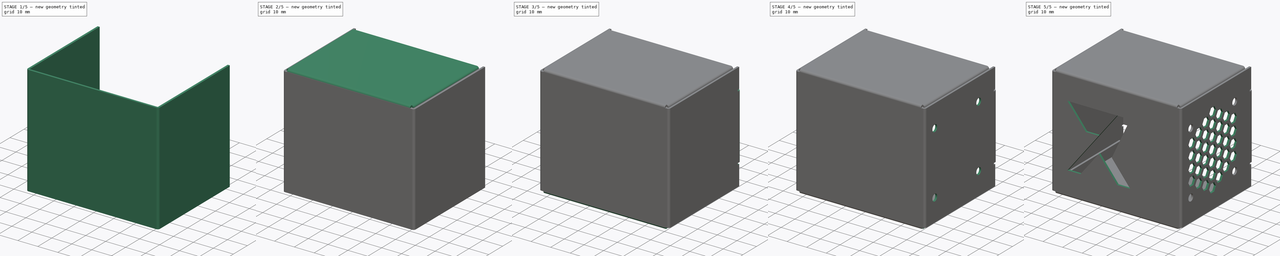
[diagram: build sequence overview — one tinted view per stage of 5, left to right]
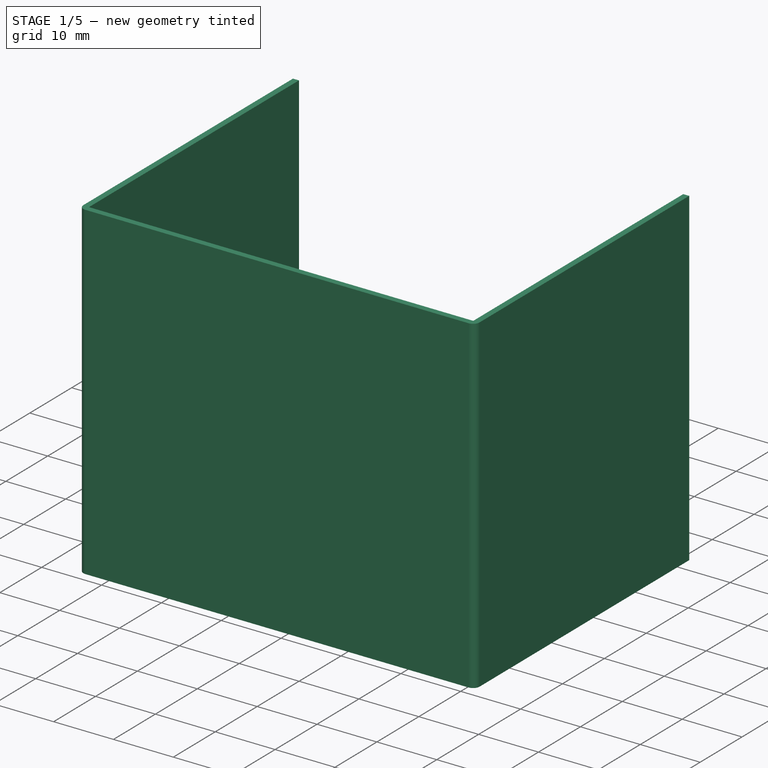
[diagram: stage 1 of 5 — iso view after this stage's code; geometry added in this stage tinted green]
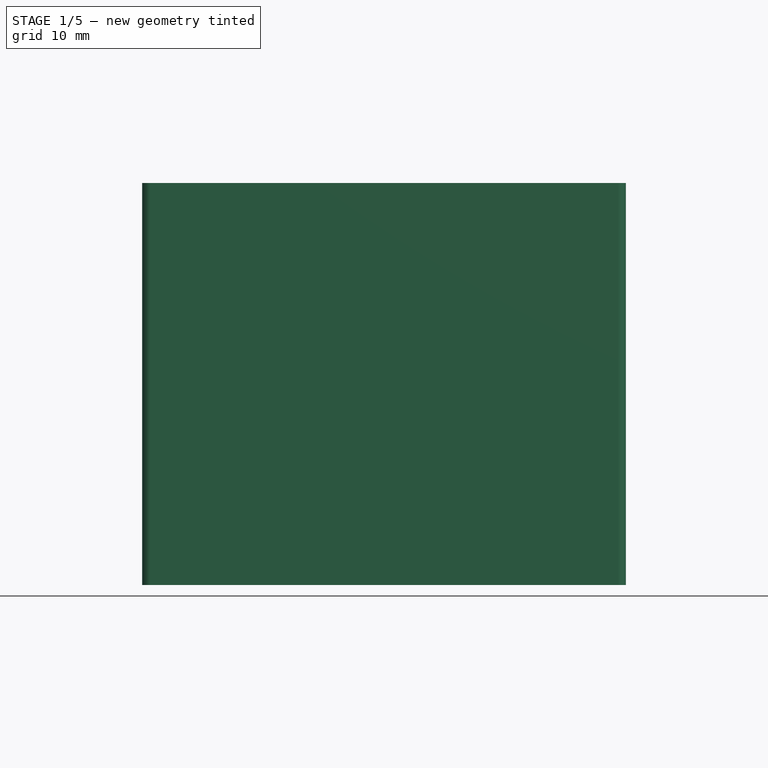
[diagram: stage 1 of 5 — front view after this stage's code; geometry added in this stage tinted green]
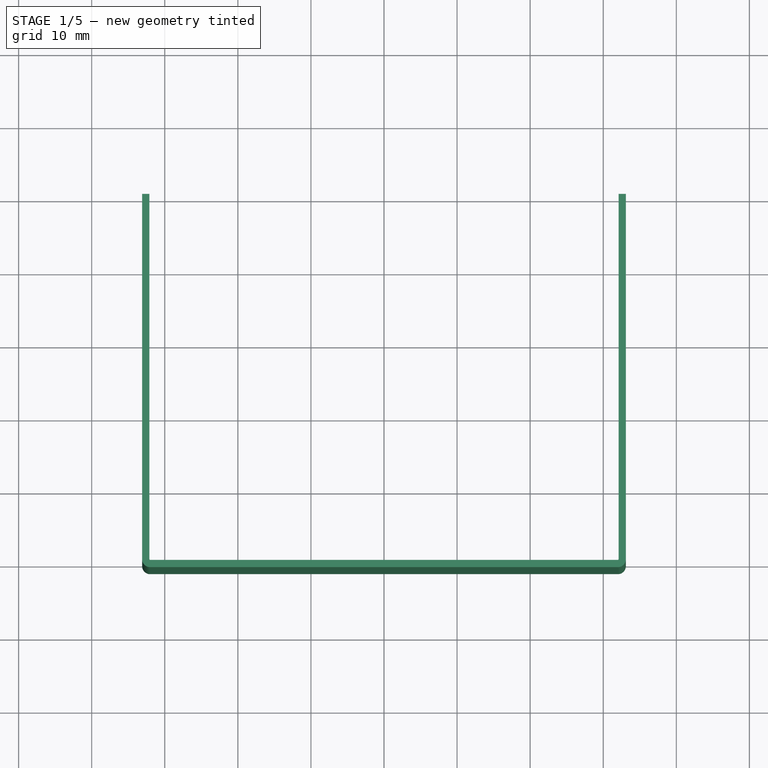
[diagram: stage 1 of 5 — top view after this stage's code; geometry added in this stage tinted green]
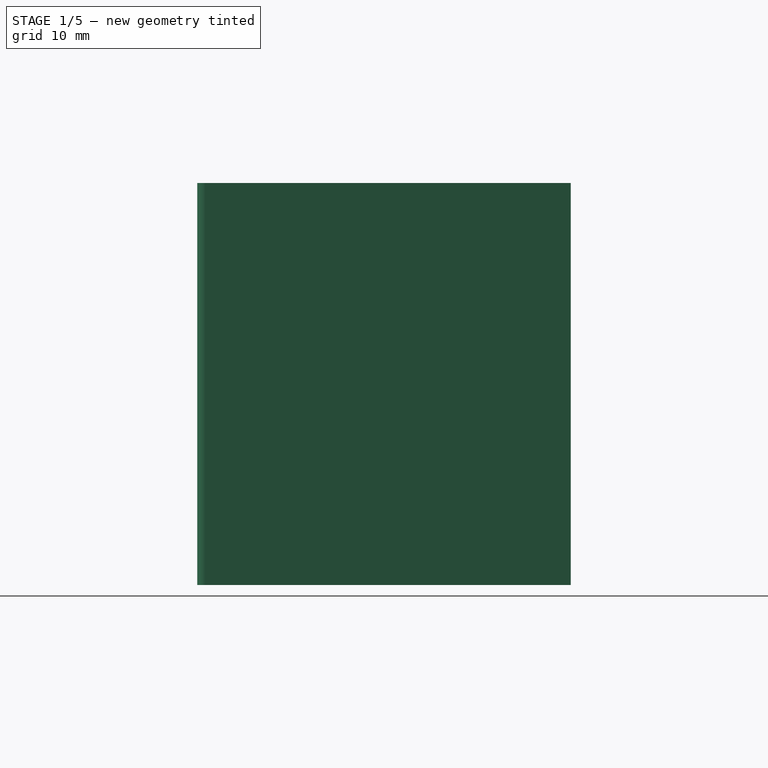
[diagram: stage 1 of 5 — right view after this stage's code; geometry added in this stage tinted green]
FCSTD DOCUMENT  (FreeCAD 0.19R24276 (Git))
Label: PX2_Hotend_housing_v2
License: All rights reserved
LicenseURL: http://en.wikipedia.org/wiki/All_rights_reserved
objects: PartDesign::FeaturePython×10, Sketcher::SketchObject×4, PartDesign::Pocket×3, PartDesign::Pad×1, PartDesign::CoordinateSystem×1, PartDesign::Line×1, PartDesign::PolarPattern×1, PartDesign::Body×1
note: 26 computed .brp shape members not serialized (recipe doc carries the construction recipe); baked Part::Feature solids carry a one-line shape summary decoded from their .brp

FEATURE [Sketcher::SketchObject] Sketch
  FullyConstrained = true
  MapMode = 5
  Placement = pos=(0,0,0) rot=(1,0,0;1.5708rad)
  Support = -> [XZ_Plane]
  sketch-geometry (4):
    g0: LineSegment StartX=-32 StartY=27.5 StartZ=0 EndX=32 EndY=27.5 EndZ=0
    g1: LineSegment StartX=32 StartY=27.5 StartZ=0 EndX=32 EndY=-27.5 EndZ=0
    g2: LineSegment StartX=32 StartY=-27.5 StartZ=0 EndX=-32 EndY=-27.5 EndZ=0
    g3: LineSegment StartX=-32 StartY=-27.5 StartZ=0 EndX=-32 EndY=27.5 EndZ=0
  constraints (11):
    c: Coincident(g0,g1)
    c: Coincident(g1,g2)
    c: Coincident(g2,g3)
    c: Coincident(g3,g0)
    c: Horizontal(g0)
    c: Horizontal(g2)
    c: Vertical(g1)
    c: Vertical(g3)
    c: DistanceX(g0,g0) = 64
    c: DistanceY(g3,g3) = 55
    c: Symmetric(g0,g1,g-1)
FEATURE [PartDesign::Pad] Pad
  Direction = (1,1,1)
  Length = 1
  Length2 = 100
  Placement = pos=(0,0,0) rot=(1,0,0;1.5708rad)
  Profile = -> Sketch
  Type = 0
FEATURE [PartDesign::FeaturePython] Bend  label="right"  # WARN: FeaturePython — macro-defined, semantics opaque (R4)
  AutoMiter = true
  BaseFeature = -> Pad
  BendType = 0
  LengthList = [50]
  ReliefFactor = 0.7
  UseReliefFactor = false
  angle = 90
  baseObject = -> Pad [Edge7]
  bendAList = [90]
  extend1 = 0
  extend2 = 0
  gap1 = 0
  gap2 = 0
  invert = false
  kfactor = 0.5
  length = 50
  maxExtendDist = 5
  minGap = 0.1
  minReliefGap = 1
  miterangle1 = 0
  miterangle2 = 0
  offset = 0
  radius = 0.1
  reliefType = 0
  reliefd = 1
  reliefw = 0.8
  sketchflip = false
  sketchinvert = false
  unfold = false
FEATURE [PartDesign::FeaturePython] Bend001  label="left"  # WARN: FeaturePython — macro-defined, semantics opaque (R4)
  AutoMiter = true
  BaseFeature = -> Bend
  BendType = 0
  LengthList = [50]
  ReliefFactor = 0.7
  UseReliefFactor = false
  angle = 90
  baseObject = -> Bend [Edge25]
  bendAList = [90]
  extend1 = 0
  extend2 = 0
  gap1 = 0
  gap2 = 0
  invert = false
  kfactor = 0.5
  length = 50
  maxExtendDist = 5
  minGap = 0.1
  minReliefGap = 1
  miterangle1 = 0
  miterangle2 = 0
  offset = 0
  radius = 0.1
  reliefType = 0
  reliefd = 1
  reliefw = 0.8
  sketchflip = false
  sketchinvert = false
  unfold = false
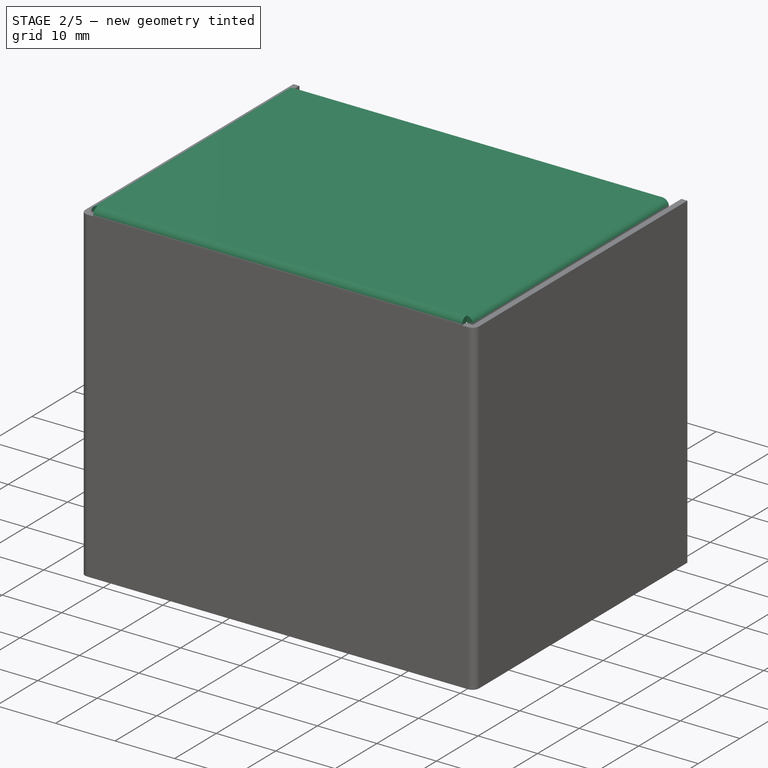
[diagram: stage 2 of 5 — iso view after this stage's code; geometry added in this stage tinted green]
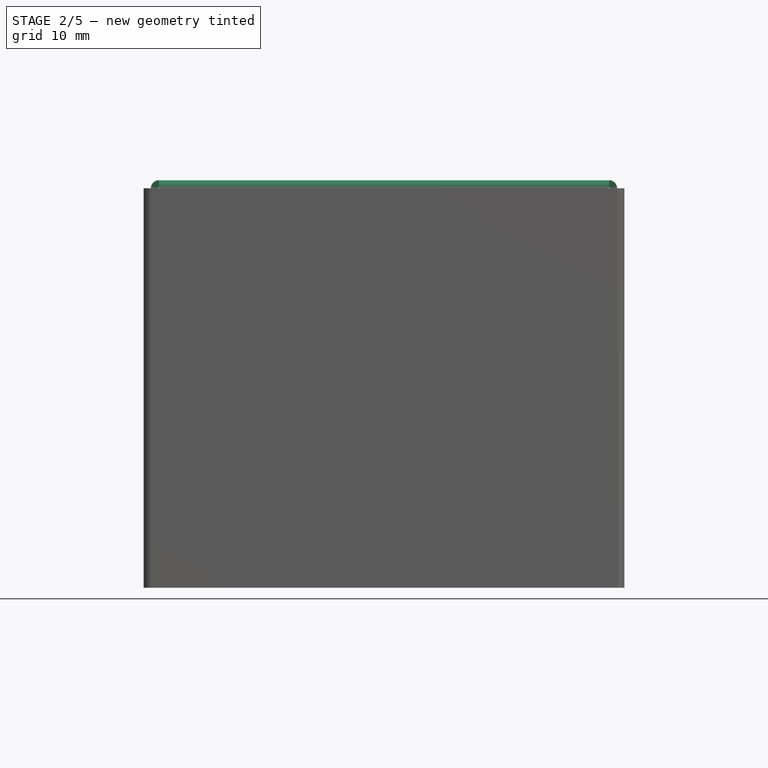
[diagram: stage 2 of 5 — front view after this stage's code; geometry added in this stage tinted green]
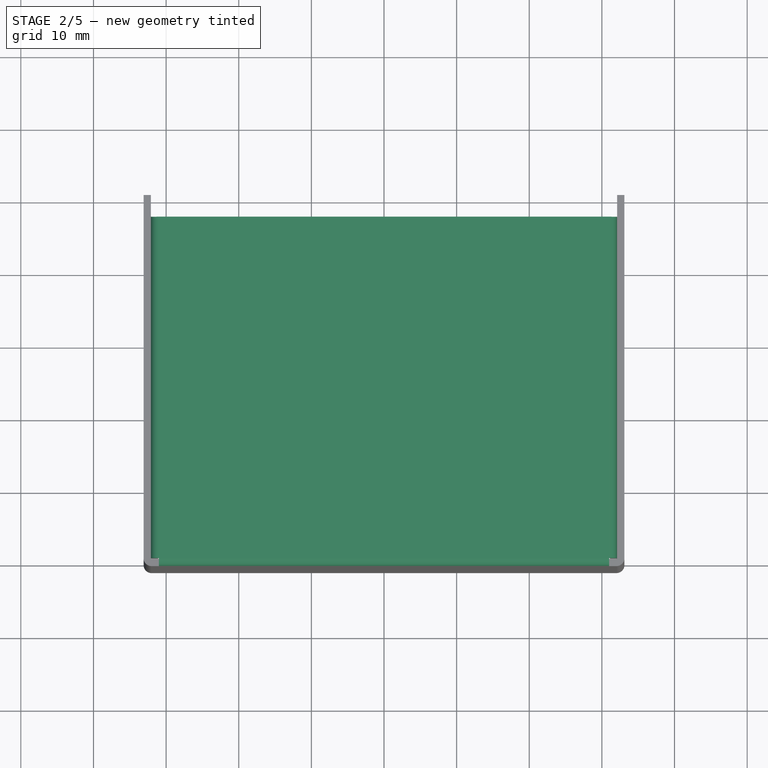
[diagram: stage 2 of 5 — top view after this stage's code; geometry added in this stage tinted green]
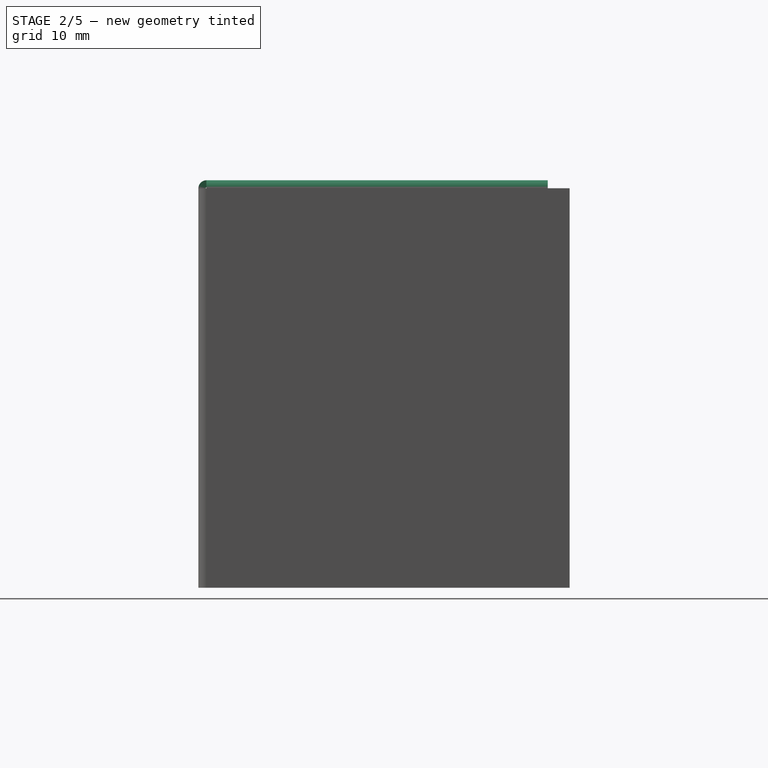
[diagram: stage 2 of 5 — right view after this stage's code; geometry added in this stage tinted green]
FEATURE [PartDesign::FeaturePython] Bend002  label="top"  # WARN: FeaturePython — macro-defined, semantics opaque (R4)
  AutoMiter = true
  BaseFeature = -> Bend001
  BendType = 0
  LengthList = [47]
  ReliefFactor = 0.7
  UseReliefFactor = false
  angle = 90
  baseObject = -> Bend001 [Edge24]
  bendAList = [90]
  extend1 = 0
  extend2 = 0
  gap1 = 1
  gap2 = 1
  invert = false
  kfactor = 0.5
  length = 47
  maxExtendDist = 5
  minGap = 0.1
  minReliefGap = 1
  miterangle1 = 0
  miterangle2 = 0
  offset = 0
  radius = 0.1
  reliefType = 0
  reliefd = 1
  reliefw = 0.8
  sketchflip = false
  sketchinvert = false
  unfold = false
FEATURE [PartDesign::FeaturePython] Bend003  label="top_flap_l"  # WARN: FeaturePython — macro-defined, semantics opaque (R4)
  AutoMiter = true
  BaseFeature = -> Bend002
  BendType = 0
  LengthList = [5]
  ReliefFactor = 0.7
  UseReliefFactor = false
  angle = 90
  baseObject = -> Bend002 [Edge3]
  bendAList = [90]
  extend1 = 0
  extend2 = 0
  gap1 = 0
  gap2 = 0
  invert = false
  kfactor = 0.5
  length = 5
  maxExtendDist = 5
  minGap = 0.1
  minReliefGap = 1
  miterangle1 = 0
  miterangle2 = 0
  offset = 0
  radius = 0.1
  reliefType = 0
  reliefd = 1
  reliefw = 0.8
  sketchflip = false
  sketchinvert = false
  unfold = false
FEATURE [PartDesign::FeaturePython] Bend004  label="top_flap_r"  # WARN: FeaturePython — macro-defined, semantics opaque (R4)
  AutoMiter = true
  BaseFeature = -> Bend003
  BendType = 0
  LengthList = [5]
  ReliefFactor = 0.7
  UseReliefFactor = false
  angle = 90
  baseObject = -> Bend003 [Edge44]
  bendAList = [90]
  extend1 = 0
  extend2 = 0
  gap1 = 0
  gap2 = 0
  invert = false
  kfactor = 0.5
  length = 5
  maxExtendDist = 5
  minGap = 0.1
  minReliefGap = 1
  miterangle1 = 0
  miterangle2 = 0
  offset = 0
  radius = 0.1
  reliefType = 0
  reliefd = 1
  reliefw = 0.8
  sketchflip = false
  sketchinvert = false
  unfold = false
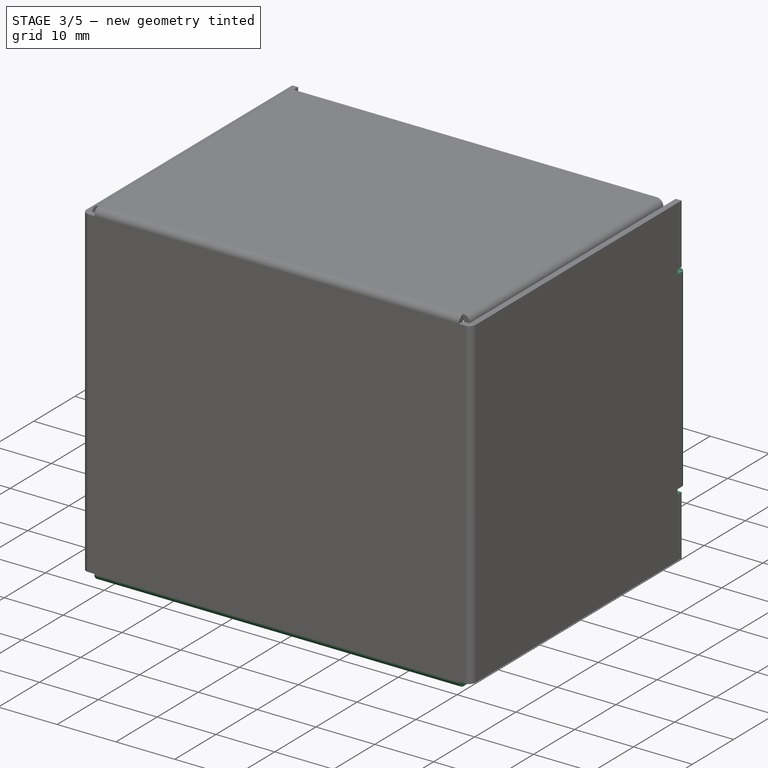
[diagram: stage 3 of 5 — iso view after this stage's code; geometry added in this stage tinted green]
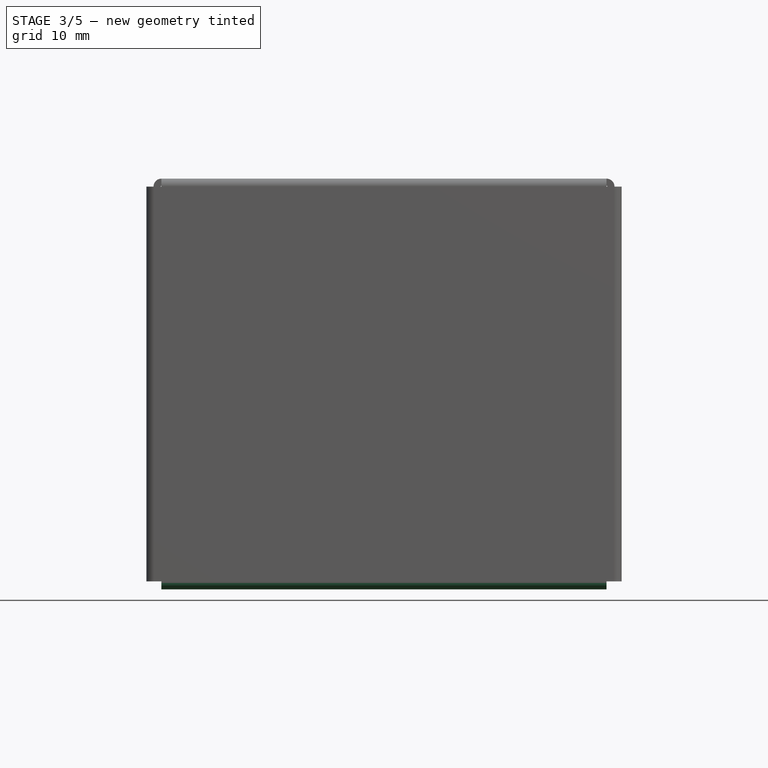
[diagram: stage 3 of 5 — front view after this stage's code; geometry added in this stage tinted green]
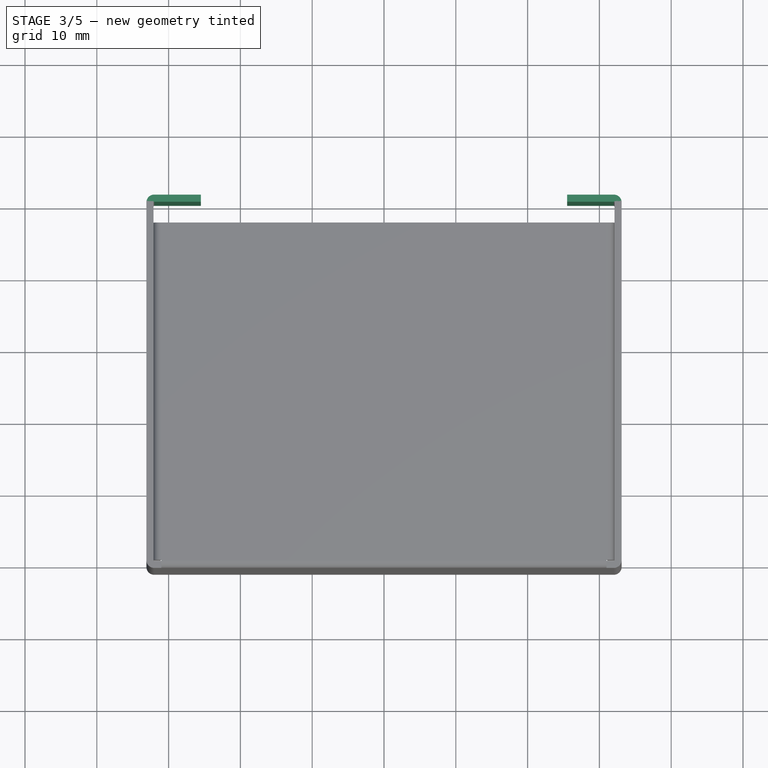
[diagram: stage 3 of 5 — top view after this stage's code; geometry added in this stage tinted green]
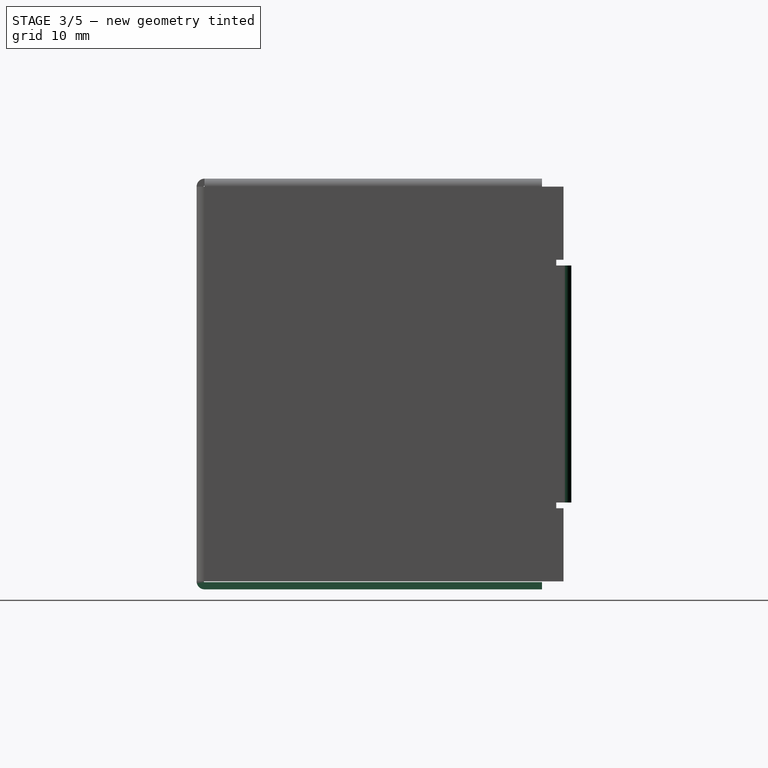
[diagram: stage 3 of 5 — right view after this stage's code; geometry added in this stage tinted green]
FEATURE [PartDesign::FeaturePython] Bend005  label="back_flap_r"  # WARN: FeaturePython — macro-defined, semantics opaque (R4)
  AutoMiter = true
  BaseFeature = -> Bend004
  BendType = 0
  LengthList = [6.5]
  ReliefFactor = 0.7
  UseReliefFactor = false
  angle = 90
  baseObject = -> Bend004 [Edge34]
  bendAList = [90]
  extend1 = 0
  extend2 = 0
  gap1 = 11
  gap2 = 11
  invert = false
  kfactor = 0.5
  length = 6.5
  maxExtendDist = 5
  minGap = 0.1
  minReliefGap = 1
  miterangle1 = 0
  miterangle2 = 0
  offset = 0
  radius = 0.1
  reliefType = 0
  reliefd = 1
  reliefw = 0.8
  sketchflip = false
  sketchinvert = false
  unfold = false
FEATURE [PartDesign::FeaturePython] Bend006  label="back_flap_l"  # WARN: FeaturePython — macro-defined, semantics opaque (R4)
  AutoMiter = true
  BaseFeature = -> Bend005
  BendType = 0
  LengthList = [6.5]
  ReliefFactor = 0.7
  UseReliefFactor = false
  angle = 90
  baseObject = -> Bend005 [Edge119]
  bendAList = [90]
  extend1 = 0
  extend2 = 0
  gap1 = 11
  gap2 = 11
  invert = false
  kfactor = 0.5
  length = 6.5
  maxExtendDist = 5
  minGap = 0.1
  minReliefGap = 1
  miterangle1 = 0
  miterangle2 = 0
  offset = 0
  radius = 0.1
  reliefType = 0
  reliefd = 1
  reliefw = 0.8
  sketchflip = false
  sketchinvert = false
  unfold = false
FEATURE [PartDesign::FeaturePython] Bend007  label="bottom"  # WARN: FeaturePython — macro-defined, semantics opaque (R4)
  AutoMiter = true
  BaseFeature = -> Bend006
  BendType = 0
  LengthList = [47]
  ReliefFactor = 0.7
  UseReliefFactor = false
  angle = 90
  baseObject = -> Bend006 [Edge77]
  bendAList = [90]
  extend1 = 0
  extend2 = 0
  gap1 = 1
  gap2 = 1
  invert = false
  kfactor = 0.5
  length = 47
  maxExtendDist = 5
  minGap = 0.1
  minReliefGap = 1
  miterangle1 = 0
  miterangle2 = 0
  offset = 0
  radius = 0.1
  reliefType = 0
  reliefd = 1
  reliefw = 0.8
  sketchflip = false
  sketchinvert = false
  unfold = false
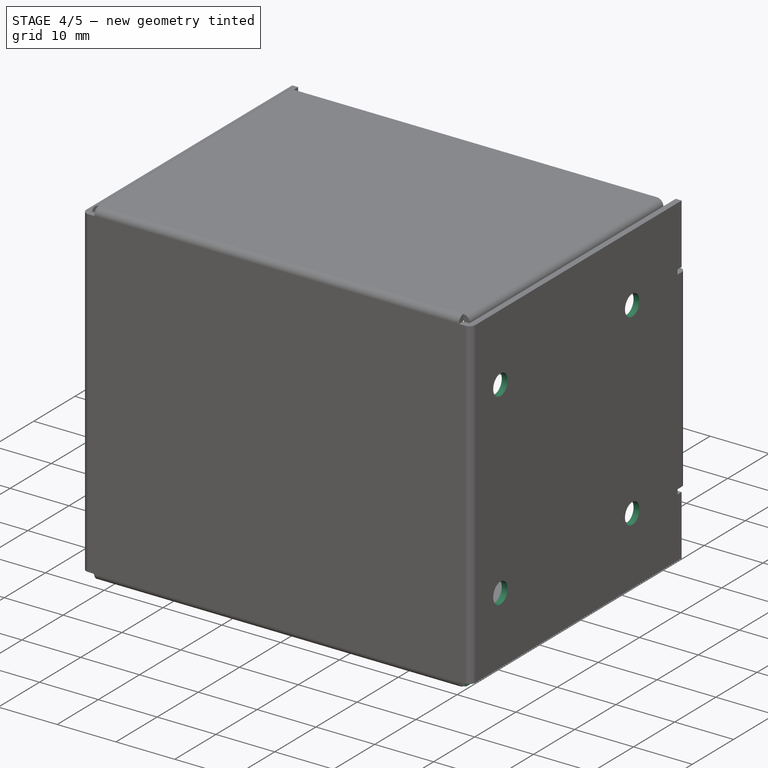
[diagram: stage 4 of 5 — iso view after this stage's code; geometry added in this stage tinted green]
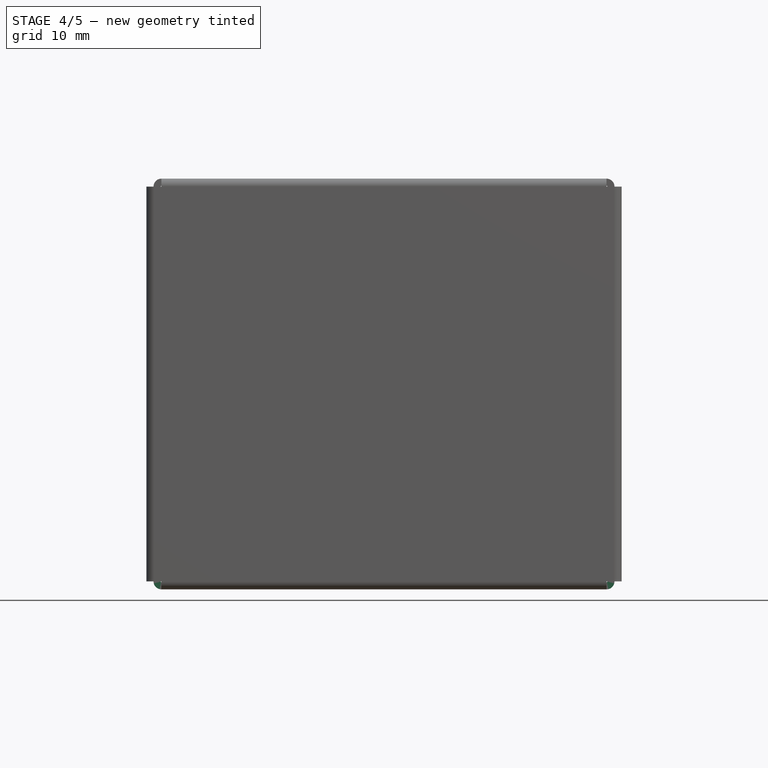
[diagram: stage 4 of 5 — front view after this stage's code; geometry added in this stage tinted green]
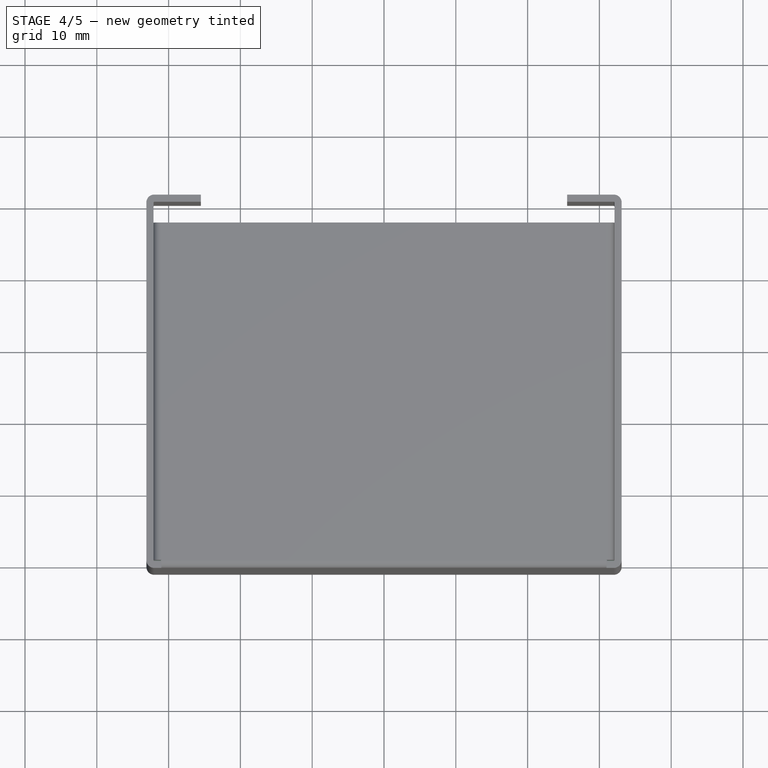
[diagram: stage 4 of 5 — top view after this stage's code; geometry added in this stage tinted green]
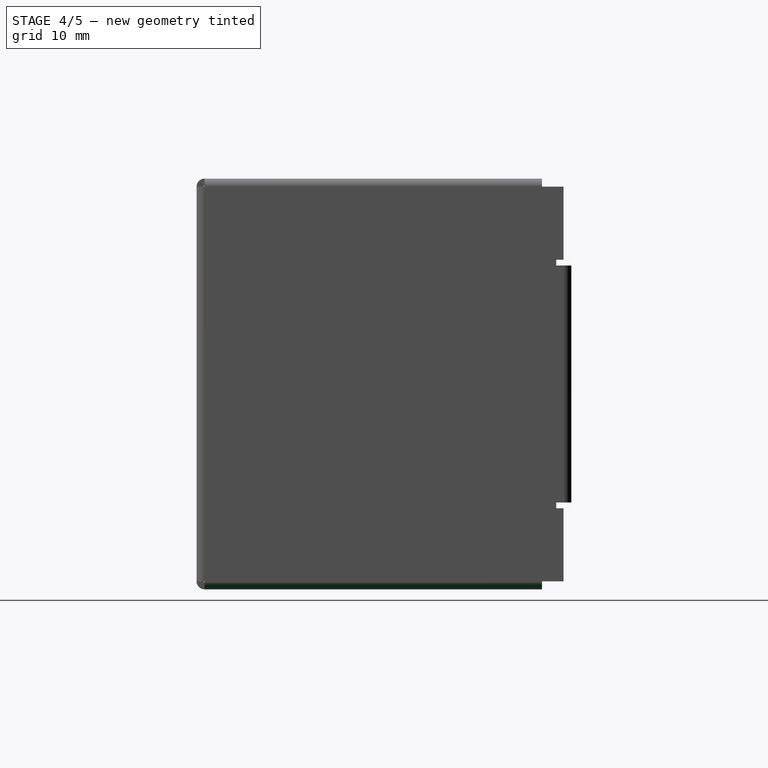
[diagram: stage 4 of 5 — right view after this stage's code; geometry added in this stage tinted green]
FEATURE [PartDesign::FeaturePython] Bend008  # WARN: FeaturePython — macro-defined, semantics opaque (R4)
  AutoMiter = true
  BaseFeature = -> Bend007
  BendType = 0
  LengthList = [5]
  ReliefFactor = 0.7
  UseReliefFactor = false
  angle = 90
  baseObject = -> Bend007 [Edge3]
  bendAList = [90]
  extend1 = 0
  extend2 = 0
  gap1 = 0
  gap2 = 0
  invert = false
  kfactor = 0.5
  length = 5
  maxExtendDist = 5
  minGap = 0.1
  minReliefGap = 1
  miterangle1 = 0
  miterangle2 = 0
  offset = 0
  radius = 0.1
  reliefType = 0
  reliefd = 1
  reliefw = 0.8
  sketchflip = false
  sketchinvert = false
  unfold = false
FEATURE [PartDesign::FeaturePython] Bend009  # WARN: FeaturePython — macro-defined, semantics opaque (R4)
  AutoMiter = true
  BaseFeature = -> Bend008
  BendType = 0
  LengthList = [5]
  ReliefFactor = 0.7
  UseReliefFactor = false
  angle = 90
  baseObject = -> Bend008 [Edge60]
  bendAList = [90]
  extend1 = 0
  extend2 = 0
  gap1 = 0
  gap2 = 0
  invert = false
  kfactor = 0.5
  length = 5
  maxExtendDist = 5
  minGap = 0.1
  minReliefGap = 1
  miterangle1 = 0
  miterangle2 = 0
  offset = 0
  radius = 0.1
  reliefType = 0
  reliefd = 1
  reliefw = 0.8
  sketchflip = false
  sketchinvert = false
  unfold = false
FEATURE [Sketcher::SketchObject] Sketch001  label="fan_screws_skt"
  ExternalGeometry = -> [Bend009]
  FullyConstrained = true
  MapMode = 5
  Placement = pos=(33.1,0,-1.09e-14) rot=(0.57735,0.57735,0.57735;2.0944rad)
  Support = -> [Bend009]
  sketch-geometry (15):
    g0: LineSegment StartX=6.1 StartY=16 StartZ=0 EndX=38.1 EndY=16 EndZ=0
    g1: LineSegment StartX=38.1 StartY=16 StartZ=0 EndX=38.1 EndY=-16 EndZ=0
    g2: LineSegment StartX=38.1 StartY=-16 StartZ=0 EndX=6.1 EndY=-16 EndZ=0
    g3: LineSegment StartX=6.1 StartY=-16 StartZ=0 EndX=6.1 EndY=16 EndZ=0
    g4: Circle CenterX=6.1 CenterY=16 CenterZ=0 NormalX=0 NormalY=0 NormalZ=1 AngleXU=0 Radius=1.75
    g5: Circle CenterX=38.1 CenterY=16 CenterZ=0 NormalX=0 NormalY=0 NormalZ=1 AngleXU=0 Radius=1.75
    g6: Circle CenterX=38.1 CenterY=-16 CenterZ=0 NormalX=0 NormalY=0 NormalZ=1 AngleXU=0 Radius=1.75
    g7: Circle CenterX=6.1 CenterY=-16 CenterZ=0 NormalX=0 NormalY=0 NormalZ=1 AngleXU=0 Radius=1.75
    g8: LineSegment StartX=2.1 StartY=20 StartZ=0 EndX=42.1 EndY=20 EndZ=0
    g9: LineSegment StartX=42.1 StartY=20 StartZ=0 EndX=42.1 EndY=-20 EndZ=0
    g10: LineSegment StartX=42.1 StartY=-20 StartZ=0 EndX=2.1 EndY=-20 EndZ=0
    g11: LineSegment StartX=2.1 StartY=-20 StartZ=0 EndX=2.1 EndY=20 EndZ=0
    g12: LineSegment StartX=6.1 StartY=16 StartZ=0 EndX=38.1 EndY=-16 EndZ=0
    g13: LineSegment StartX=6.1 StartY=-16 StartZ=0 EndX=38.1 EndY=16 EndZ=0
    g14: GeomPoint X=22.1 Y=0 Z=0
  constraints (37):
    c: Coincident(g0,g1)
    c: Coincident(g1,g2)
    c: Coincident(g2,g3)
    c: Coincident(g3,g0)
    c: Horizontal(g0)
    c: Horizontal(g2)
    c: Vertical(g1)
    c: Vertical(g3)
    c: Equal(g1,g0)
    c: DistanceY(g1,g1) = 32
    c: Coincident(g4,g0)
    c: Coincident(g5,g0)
    c: Coincident(g6,g1)
    c: Coincident(g7,g2)
    c: Equal(g4,g7)
    c: Equal(g7,g6)
    c: Equal(g6,g5)
    c: Diameter(g5) = 3.5
    c: Coincident(g8,g9)
    c: Coincident(g9,g10)
    c: Coincident(g10,g11)
    c: Coincident(g11,g8)
    c: Horizontal(g8)
    c: Horizontal(g10)
    c: Vertical(g9)
    c: Vertical(g11)
    c: Equal(g8,g9)
    c: DistanceX(g8,g8) = 40
    c: Coincident(g12,g0)
    c: Coincident(g12,g1)
    c: Coincident(g13,g2)
    c: Coincident(g13,g0)
    c: PointOnObject(g14,g13)
    c: PointOnObject(g14,g12)
    c: Symmetric(g8,g9,g14)
    c: PointOnObject(g14,g-1)
    c: DistanceX(g8,g-3) = 8
FEATURE [PartDesign::Pocket] Pocket  label="fan_screws"
  BaseFeature = -> Bend009
  Length = 5
  Length2 = 100
  Profile = -> Sketch001
  Type = 0
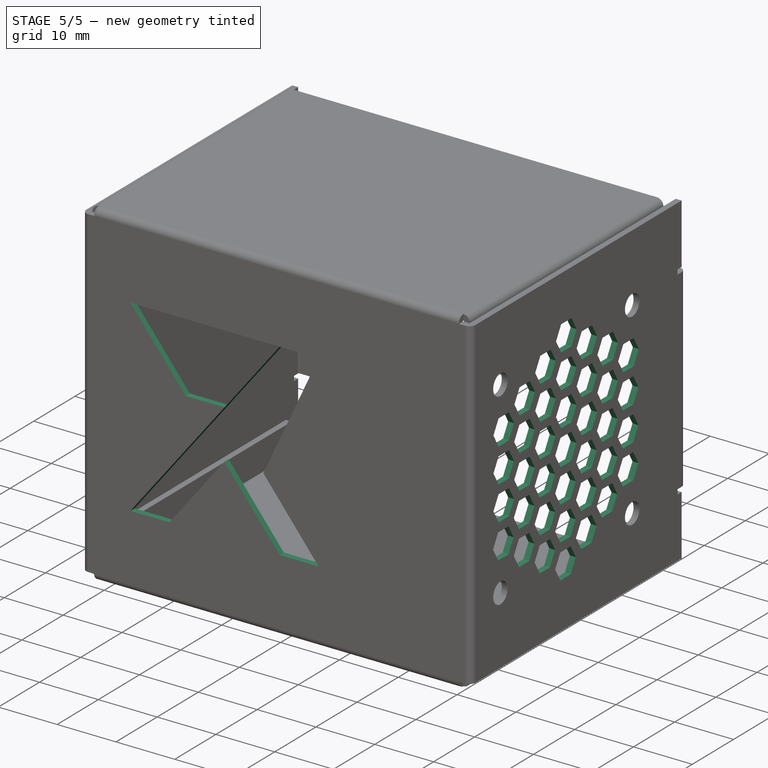
[diagram: stage 5 of 5 — iso view after this stage's code; geometry added in this stage tinted green]
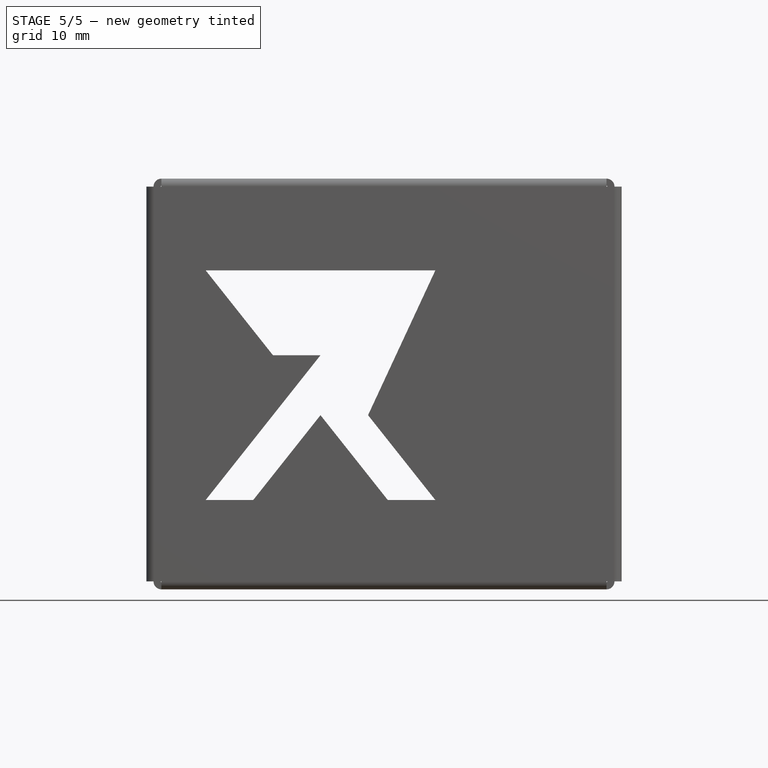
[diagram: stage 5 of 5 — front view after this stage's code; geometry added in this stage tinted green]
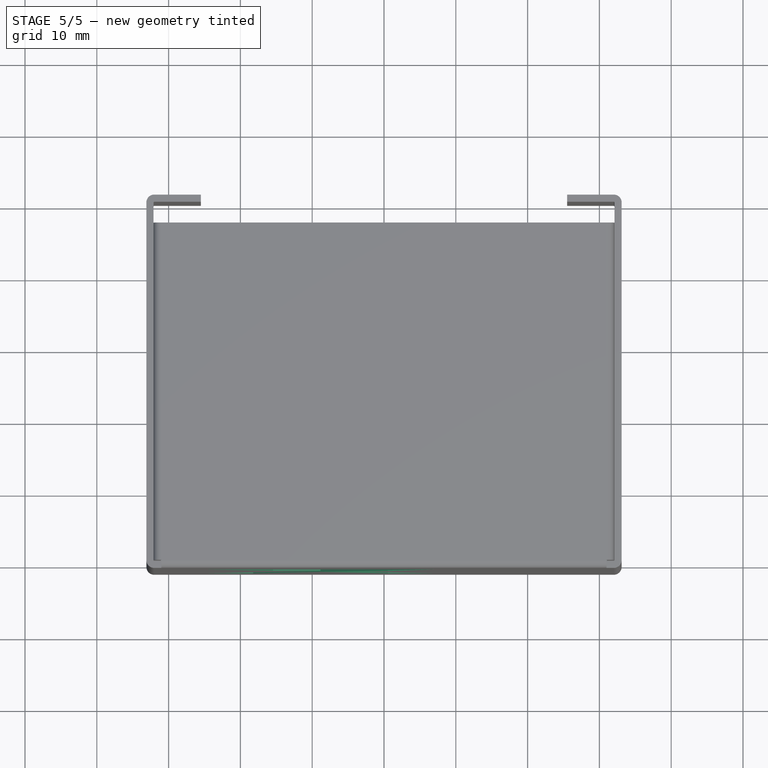
[diagram: stage 5 of 5 — top view after this stage's code; geometry added in this stage tinted green]
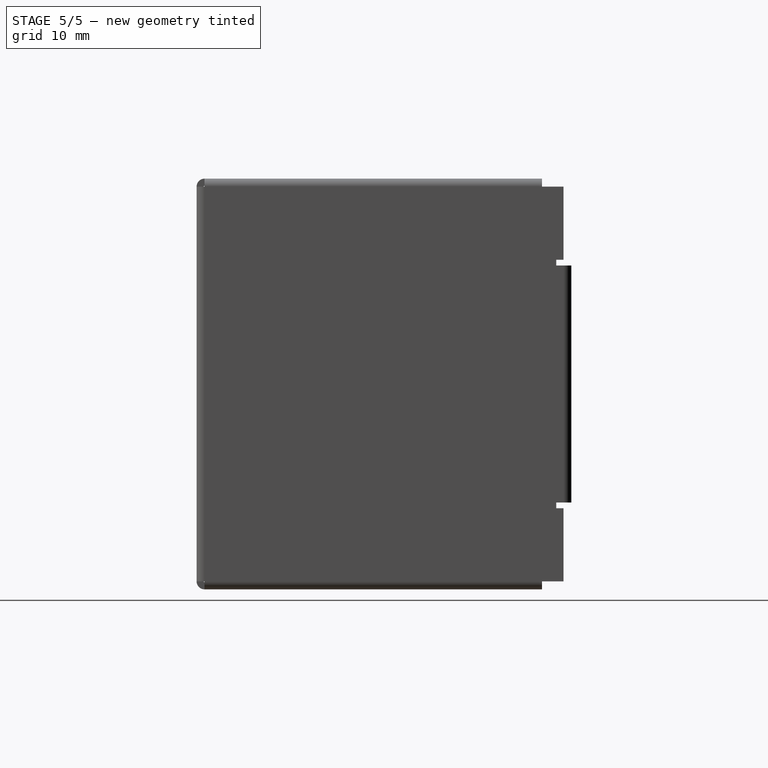
[diagram: stage 5 of 5 — right view after this stage's code; geometry added in this stage tinted green]
FEATURE [Sketcher::SketchObject] Sketch002  label="fan_holes_skt"
  ExternalGeometry = -> [Pocket]
  FullyConstrained = true
  MapMode = 5
  Placement = pos=(33.1,0,-1.09e-14) rot=(0.57735,0.57735,0.57735;2.0944rad)
  Support = -> [Pocket]
  sketch-geometry (57):
    g0: LineSegment StartX=6.1 StartY=16 StartZ=0 EndX=38.1 EndY=-16 EndZ=0
    g1: LineSegment StartX=6.1 StartY=-16 StartZ=0 EndX=38.1 EndY=16 EndZ=0
    g2: LineSegment StartX=24.6 StartY=0 StartZ=0 EndX=23.35 EndY=2.16506 EndZ=0
    g3: LineSegment StartX=23.35 StartY=2.16506 StartZ=0 EndX=20.85 EndY=2.16506 EndZ=0
    g4: LineSegment StartX=20.85 StartY=2.16506 StartZ=0 EndX=19.6 EndY=2.2e-15 EndZ=0
    g5: LineSegment StartX=19.6 StartY=2.2e-15 StartZ=0 EndX=20.85 EndY=-2.16506 EndZ=0
    g6: LineSegment StartX=20.85 StartY=-2.16506 StartZ=0 EndX=23.35 EndY=-2.16506 EndZ=0
    g7: LineSegment StartX=23.35 StartY=-2.16506 StartZ=0 EndX=24.6 EndY=0 EndZ=0
    g8: Circle CenterX=22.1 CenterY=1.1e-15 CenterZ=0 NormalX=0 NormalY=0 NormalZ=1 AngleXU=0 Radius=2.5
    g9: LineSegment StartX=23.35 StartY=7.99519 StartZ=0 EndX=20.85 EndY=7.99519 EndZ=0
    g10: LineSegment StartX=20.85 StartY=7.99519 StartZ=0 EndX=19.6 EndY=5.83013 EndZ=0
    g11: LineSegment StartX=19.6 StartY=5.83013 StartZ=0 EndX=20.85 EndY=3.66506 EndZ=0
    g12: LineSegment StartX=20.85 StartY=3.66506 StartZ=0 EndX=23.35 EndY=3.66506 EndZ=0
    g13: LineSegment StartX=23.35 StartY=3.66506 StartZ=0 EndX=24.6 EndY=5.83013 EndZ=0
    g14: LineSegment StartX=24.6 StartY=5.83013 StartZ=0 EndX=23.35 EndY=7.99519 EndZ=0
    g15: Circle CenterX=22.1 CenterY=5.83013 CenterZ=0 NormalX=0 NormalY=0 NormalZ=1 AngleXU=0 Radius=2.5
    g16: LineSegment StartX=24.6 StartY=11.6603 StartZ=0 EndX=23.35 EndY=13.8253 EndZ=0
    g17: LineSegment StartX=23.35 StartY=13.8253 StartZ=0 EndX=20.85 EndY=13.8253 EndZ=0
    g18: LineSegment StartX=20.85 StartY=13.8253 StartZ=0 EndX=19.6 EndY=11.6603 EndZ=0
    g19: LineSegment StartX=19.6 StartY=11.6603 StartZ=0 EndX=20.85 EndY=9.49519 EndZ=0
    g20: LineSegment StartX=20.85 StartY=9.49519 StartZ=0 EndX=23.35 EndY=9.49519 EndZ=0
    g21: LineSegment StartX=23.35 StartY=9.49519 StartZ=0 EndX=24.6 EndY=11.6603 EndZ=0
    g22: Circle CenterX=22.1 CenterY=11.6603 CenterZ=0 NormalX=0 NormalY=0 NormalZ=1 AngleXU=0 Radius=2.5
    g23: LineSegment StartX=22.1 StartY=20 StartZ=0 EndX=22.1 EndY=-20 EndZ=0
    g24: LineSegment StartX=23.35 StartY=15.3253 StartZ=0 EndX=24.6 EndY=17.4904 EndZ=0
    g25: LineSegment StartX=24.6 StartY=17.4904 StartZ=0 EndX=23.35 EndY=19.6554 EndZ=0
    g26: LineSegment StartX=23.35 StartY=19.6554 StartZ=0 EndX=20.85 EndY=19.6554 EndZ=0
    g27: LineSegment StartX=20.85 StartY=19.6554 StartZ=0 EndX=19.6 EndY=17.4904 EndZ=0
    g28: LineSegment StartX=19.6 StartY=17.4904 StartZ=0 EndX=20.85 EndY=15.3253 EndZ=0
    g29: LineSegment StartX=20.85 StartY=15.3253 StartZ=0 EndX=23.35 EndY=15.3253 EndZ=0
    g30: Circle CenterX=22.1 CenterY=17.4904 CenterZ=0 NormalX=0 NormalY=0 NormalZ=1 AngleXU=0 Radius=2.5
    g31: LineSegment StartX=18.301 StartY=12.4103 StartZ=0 EndX=19.551 EndY=14.5753 EndZ=0
    g32: LineSegment StartX=19.551 StartY=14.5753 StartZ=0 EndX=18.301 EndY=16.7404 EndZ=0
    g33: LineSegment StartX=18.301 StartY=16.7404 StartZ=0 EndX=15.801 EndY=16.7404 EndZ=0
    g34: LineSegment StartX=15.801 StartY=16.7404 StartZ=0 EndX=14.551 EndY=14.5753 EndZ=0
    g35: LineSegment StartX=14.551 StartY=14.5753 StartZ=0 EndX=15.801 EndY=12.4103 EndZ=0
    g36: LineSegment StartX=15.801 StartY=12.4103 StartZ=0 EndX=18.301 EndY=12.4103 EndZ=0
    g37: Circle CenterX=17.051 CenterY=14.5753 CenterZ=0 NormalX=0 NormalY=0 NormalZ=1 AngleXU=0 Radius=2.5
    g38: LineSegment StartX=18.301 StartY=6.58013 StartZ=0 EndX=19.551 EndY=8.74519 EndZ=0
    g39: LineSegment StartX=19.551 StartY=8.74519 StartZ=0 EndX=18.301 EndY=10.9103 EndZ=0
    g40: LineSegment StartX=18.301 StartY=10.9103 StartZ=0 EndX=15.801 EndY=10.9103 EndZ=0
    g41: LineSegment StartX=15.801 StartY=10.9103 StartZ=0 EndX=14.551 EndY=8.74519 EndZ=0
    g42: LineSegment StartX=14.551 StartY=8.74519 StartZ=0 EndX=15.801 EndY=6.58013 EndZ=0
    g43: LineSegment StartX=15.801 StartY=6.58013 StartZ=0 EndX=18.301 EndY=6.58013 EndZ=0
    g44: Circle CenterX=17.051 CenterY=8.74519 CenterZ=0 NormalX=0 NormalY=0 NormalZ=1 AngleXU=0 Radius=2.5
    g45: LineSegment StartX=13.2519 StartY=9.49519 StartZ=0 EndX=14.5019 EndY=11.6603 EndZ=0
    g46: LineSegment StartX=14.5019 StartY=11.6603 StartZ=0 EndX=13.2519 EndY=13.8253 EndZ=0
    g47: LineSegment StartX=13.2519 StartY=13.8253 StartZ=0 EndX=10.7519 EndY=13.8253 EndZ=0
    g48: LineSegment StartX=10.7519 StartY=13.8253 StartZ=0 EndX=9.50192 EndY=11.6603 EndZ=0
    g49: LineSegment StartX=9.50192 StartY=11.6603 StartZ=0 EndX=10.7519 EndY=9.49519 EndZ=0
    g50: LineSegment StartX=10.7519 StartY=9.49519 StartZ=0 EndX=13.2519 EndY=9.49519 EndZ=0
    g51: Circle CenterX=12.0019 CenterY=11.6603 CenterZ=0 NormalX=0 NormalY=0 NormalZ=1 AngleXU=0 Radius=2.5
    g52: LineSegment StartX=17.051 StartY=14.5753 StartZ=0 EndX=17.051 EndY=8.74519 EndZ=0
    g53: LineSegment StartX=12.0019 StartY=11.6603 StartZ=0 EndX=17.051 EndY=14.5753 EndZ=0
    g54: LineSegment StartX=12.0019 StartY=11.6603 StartZ=0 EndX=17.051 EndY=8.74519 EndZ=0
    g55: LineSegment StartX=17.051 StartY=14.5753 StartZ=0 EndX=22.1 EndY=17.4904 EndZ=0
    g56: LineSegment StartX=17.051 StartY=8.74519 StartZ=0 EndX=22.1 EndY=5.83013 EndZ=0
  constraints (137):
    c: Coincident(g0,g-3)
    c: Coincident(g0,g-5)
    c: Coincident(g1,g-6)
    c: Coincident(g1,g-4)
    c: Coincident(g2,g3)
    c: Coincident(g3,g4)
    c: Coincident(g4,g5)
    c: Coincident(g5,g6)
    c: Coincident(g6,g7)
    c: Coincident(g7,g2)
    c: Equal(g2, g3-g7) x5
    c: PointOnObject(g2,g8)
    c: PointOnObject(g3,g8)
    c: PointOnObject(g4,g8)
    c: PointOnObject(g5,g8)
    c: PointOnObject(g6,g8)
    c: PointOnObject(g7,g8)
    c: PointOnObject(g8,g0)
    c: PointOnObject(g7,g-1)
    c: PointOnObject(g8,g1)
    c: Diameter(g8) = 5
    c: Coincident(g9,g10)
    c: Coincident(g10,g11)
    c: Coincident(g11,g12)
    c: Coincident(g12,g13)
    c: Coincident(g13,g14)
    c: Coincident(g14,g9)
    c: Equal(g9, g10-g14) x5
    c: PointOnObject(g9,g15)
    c: PointOnObject(g10,g15)
    c: PointOnObject(g11,g15)
    c: PointOnObject(g12,g15)
    c: PointOnObject(g13,g15)
    c: PointOnObject(g14,g15)
    c: Horizontal(g12)
    c: Equal(g15,g8)
    c: DistanceY(g3,g11) = 1.5
    c: Coincident(g16,g17)
    c: Coincident(g17,g18)
    c: Coincident(g18,g19)
    c: Coincident(g19,g20)
    c: Coincident(g20,g21)
    c: Coincident(g21,g16)
    c: Equal(g16, g17-g21) x5
    c: PointOnObject(g16,g22)
    c: PointOnObject(g17,g22)
    c: PointOnObject(g18,g22)
    c: PointOnObject(g19,g22)
    c: PointOnObject(g20,g22)
    c: PointOnObject(g21,g22)
    c: Horizontal(g20)
    c: Equal(g22,g15)
    c: DistanceY(g9,g19) = 1.5
    c: Vertical(g23)
    c: PointOnObject(g8,g23)
    c: PointOnObject(g15,g23)
    c: PointOnObject(g22,g23)
    c: DistanceY(g23,g23) = 40
    c: DistanceY(g-1,g23) = 20
    c: Coincident(g24,g25)
    c: Coincident(g25,g26)
    c: Coincident(g26,g27)
    c: Coincident(g27,g28)
    c: Coincident(g28,g29)
    c: Coincident(g29,g24)
    c: Equal(g24, g25-g29) x5
    c: PointOnObject(g24,g30)
    c: PointOnObject(g25,g30)
    c: PointOnObject(g26,g30)
    c: PointOnObject(g27,g30)
    c: PointOnObject(g28,g30)
    c: PointOnObject(g29,g30)
    c: PointOnObject(g30,g23)
    c: Equal(g30,g22)
    c: Horizontal(g29)
    c: DistanceY(g17,g28) = 1.5
    c: Coincident(g31,g32)
    c: Coincident(g32,g33)
    c: Coincident(g33,g34)
    c: Coincident(g34,g35)
    c: Coincident(g35,g36)
    c: Coincident(g36,g31)
    c: Equal(g31, g32-g36) x5
    c: PointOnObject(g31,g37)
    c: PointOnObject(g32,g37)
    c: PointOnObject(g33,g37)
    c: PointOnObject(g34,g37)
    c: PointOnObject(g35,g37)
    c: PointOnObject(g36,g37)
    c: Coincident(g38,g39)
    c: Coincident(g39,g40)
    c: Coincident(g40,g41)
    c: Coincident(g41,g42)
    c: Coincident(g42,g43)
    c: Coincident(g43,g38)
    c: Equal(g38, g39-g43) x5
    c: PointOnObject(g38,g44)
    c: PointOnObject(g39,g44)
    c: PointOnObject(g40,g44)
    c: PointOnObject(g41,g44)
    c: PointOnObject(g42,g44)
    c: PointOnObject(g43,g44)
    c: Coincident(g45,g46)
    c: Coincident(g46,g47)
    c: Coincident(g47,g48)
    c: Coincident(g48,g49)
    c: Coincident(g49,g50)
    c: Coincident(g50,g45)
    c: Equal(g45, g46-g50) x5
    c: PointOnObject(g45,g51)
    c: PointOnObject(g46,g51)
    c: PointOnObject(g47,g51)
    c: PointOnObject(g48,g51)
    c: PointOnObject(g49,g51)
    c: PointOnObject(g50,g51)
    c: Coincident(g52,g37)
    c: Coincident(g52,g44)
    c: Vertical(g52)
    c: Horizontal(g36)
    c: Horizontal(g40)
    c: Horizontal(g50)
    c: Equal(g51,g37)
    c: Equal(g37,g44)
    c: Equal(g44,g30)
    c: DistanceY(g40,g35) = 1.5
    c: Coincident(g53,g51)
    c: Coincident(g53,g37)
    c: Coincident(g54,g51)
    c: Coincident(g54,g44)
    c: Equal(g53,g54)
    c: Equal(g54,g52)
    c: Coincident(g55,g37)
    c: Coincident(g55,g30)
    c: Equal(g55,g53)
    c: Coincident(g56,g44)
    c: Coincident(g56,g15)
    c: Equal(g56,g55)
FEATURE [PartDesign::Pocket] Pocket001  label="fan_holes"
  BaseFeature = -> Pocket
  Length = 2
  Length2 = 100
  Profile = -> Sketch002
  Type = 0
FEATURE [PartDesign::CoordinateSystem] Local_CS
  AttacherType = Attacher::AttachEngine3D
  AttachmentOffset = pos=(22,0,0) rot=(0,0,1;0rad)
  MapMode = 2
  Placement = pos=(33.1,22,-1.58e-14) rot=(0.57735,0.57735,0.57735;2.0944rad)
  Support = -> [Sketch002]
FEATURE [PartDesign::Line] DatumLine
  AttacherType = Attacher::AttachEngineLine
  Length = 20
  MapMode = 18
  Placement = pos=(33.1,22,-1.58e-14) rot=(0.57735,0.57735,0.57735;2.0944rad)
  ResizeMode = 0
  Support = -> [Local_CS]
FEATURE [PartDesign::PolarPattern] PolarPattern
  Angle = 360
  Axis = -> DatumLine
  BaseFeature = -> Pocket001
  Occurrences = 6
  Originals = -> [Pocket001]
FEATURE [Sketcher::SketchObject] Sketch003
  FullyConstrained = false
  MapMode = 5
  Placement = pos=(0,-1,2e-16) rot=(1,0,0;1.5708rad)
  Support = -> [PolarPattern]
  sketch-geometry (17):
    g0: LineSegment StartX=-24.8445 StartY=15.8345 StartZ=0 EndX=-18.2212 EndY=15.8345 EndZ=0
    g1: LineSegment StartX=-18.2212 StartY=15.8345 StartZ=0 EndX=-8.84448 EndY=4.01042 EndZ=0
    g2: LineSegment StartX=-8.84448 StartY=4.01042 StartZ=0 EndX=-15.4677 EndY=4.01042 EndZ=0
    g3: LineSegment StartX=-15.4677 StartY=4.01042 StartZ=0 EndX=-24.8445 EndY=15.8345 EndZ=0
    g4: LineSegment StartX=-24.8445 StartY=-16.1655 StartZ=0 EndX=-18.2212 EndY=-16.1655 EndZ=0
    g5: LineSegment StartX=-18.2212 StartY=-16.1655 StartZ=0 EndX=7.15552 EndY=15.8345 EndZ=0
    g6: LineSegment StartX=7.15552 StartY=15.8345 StartZ=0 EndX=0.532287 EndY=15.8345 EndZ=0
    g7: LineSegment StartX=0.532287 StartY=15.8345 StartZ=0 EndX=-24.8445 EndY=-16.1655 EndZ=0
    g8: LineSegment StartX=-8.84448 StartY=-4.34146 StartZ=0 EndX=-2.22124 EndY=-4.34146 EndZ=0
    g9: LineSegment StartX=-2.22124 StartY=-4.34146 StartZ=0 EndX=7.15552 EndY=-16.1655 EndZ=0
    g10: LineSegment StartX=7.15552 StartY=-16.1655 StartZ=0 EndX=0.532287 EndY=-16.1655 EndZ=0
    g11: LineSegment StartX=0.532287 StartY=-16.1655 StartZ=0 EndX=-8.84448 EndY=-4.34146 EndZ=0
    g12: LineSegment StartX=-24.8445 StartY=15.8345 StartZ=0 EndX=7.15552 EndY=15.8345 EndZ=0
    g13: LineSegment StartX=7.15552 StartY=15.8345 StartZ=0 EndX=7.15552 EndY=-16.1655 EndZ=0
    g14: LineSegment StartX=7.15552 StartY=-16.1655 StartZ=0 EndX=-24.8445 EndY=-16.1655 EndZ=0
    g15: LineSegment StartX=-24.8445 StartY=-16.1655 StartZ=0 EndX=-24.8445 EndY=15.8345 EndZ=0
    g16: LineSegment StartX=-24.8445 StartY=15.8345 StartZ=0 EndX=0.532287 EndY=-16.1655 EndZ=0
  constraints (43):
    c: Coincident(g0,g1)
    c: Coincident(g1,g2)
    c: Coincident(g2,g3)
    c: Coincident(g3,g0)
    c: Horizontal(g4)
    c: Coincident(g4,g5)
    c: Coincident(g5,g6)
    c: Horizontal(g6)
    c: Coincident(g6,g7)
    c: Coincident(g7,g4)
    c: PointOnObject(g8,g5)
    c: Coincident(g8,g9)
    c: Coincident(g9,g10)
    c: Coincident(g10,g11)
    c: Coincident(g11,g8)
    c: Horizontal(g8)
    c: Horizontal(g2)
    c: Horizontal(g0)
    c: Horizontal(g10)
    c: PointOnObject(g1,g7)
    c: Parallel(g1,g3)
    c: Parallel(g9,g11)
    c: Parallel(g5,g7)
    c: Equal(g2,g4)
    c: Equal(g4,g8)
    c: Parallel(g1,g11)
    c: Coincident(g12,g13)
    c: Coincident(g13,g14)
    c: Coincident(g14,g15)
    c: Coincident(g15,g12)
    c: Horizontal(g12)
    c: Horizontal(g14)
    c: Vertical(g13)
    c: Vertical(g15)
    c: Coincident(g12,g0)
    c: Coincident(g13,g9)
    c: Coincident(g5,g12)
    c: Coincident(g4,g14)
    c: DistanceX(g12,g12) = 32
    c: DistanceY(g13,g13) = 32
    c: Coincident(g16,g0)
    c: Coincident(g16,g10)
    c: PointOnObject(g2,g16)
FEATURE [PartDesign::Pocket] Pocket002
  BaseFeature = -> PolarPattern
  Length = 5
  Length2 = 100
  Profile = -> Sketch003
  Type = 0
FEATURE [PartDesign::Body] Body
  Group = -> [Sketch,Pad,Bend,Bend001,Bend002,Bend003,Bend004,Bend005,Bend006,Bend007,Bend008,Bend009,Sketch001,Pocket,Sketch002,Pocket001,Local_CS,DatumLine,PolarPattern,Sketch003,Pocket002]
  Origin = -> Origin
  Tip = -> Pocket002
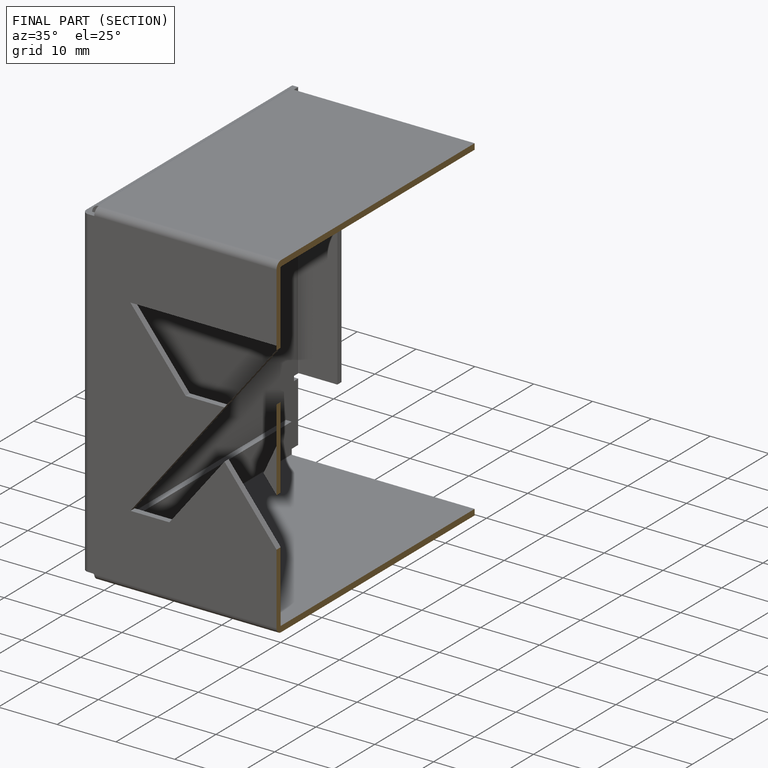
[diagram: finished part — half-section view (interior)]
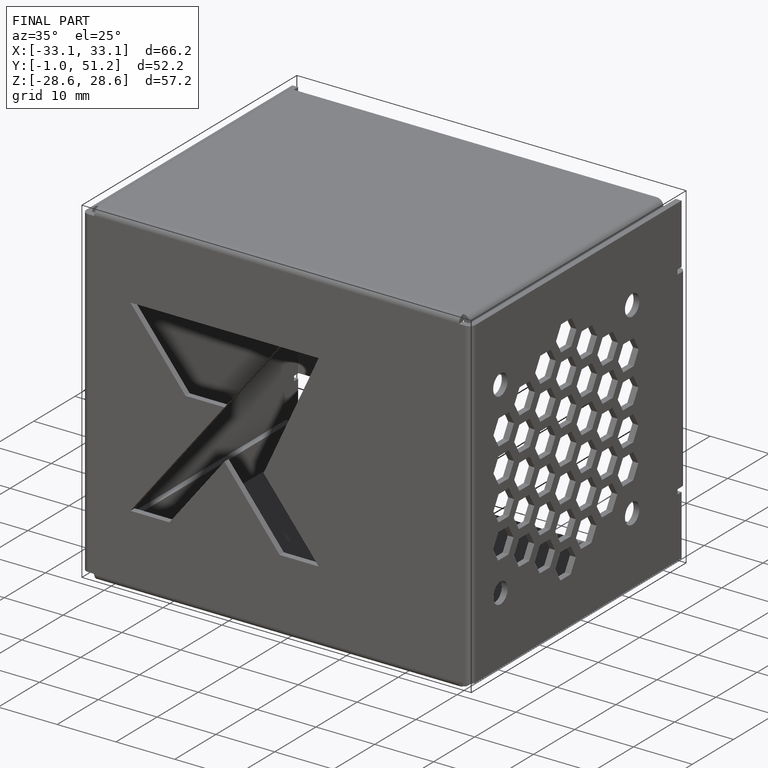
[diagram: finished part — iso view with bounding-box wireframe]
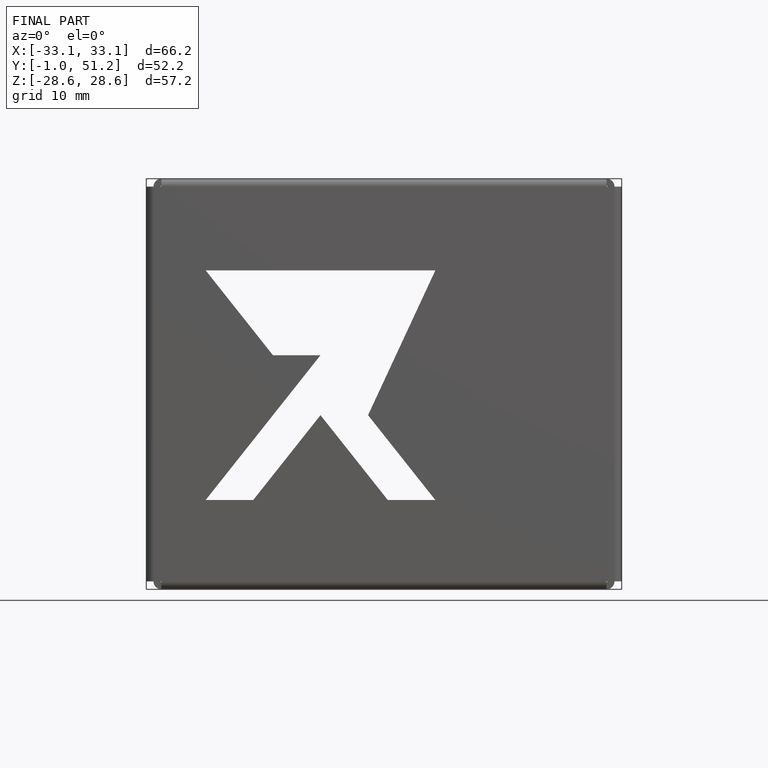
[diagram: finished part — front view with bounding-box wireframe]
